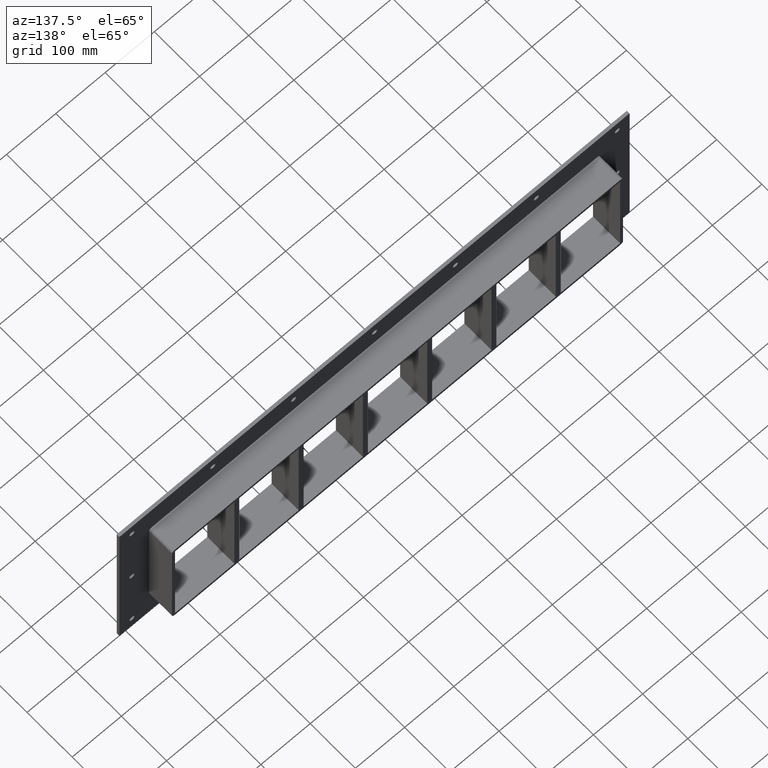
[diagram: clean part render]
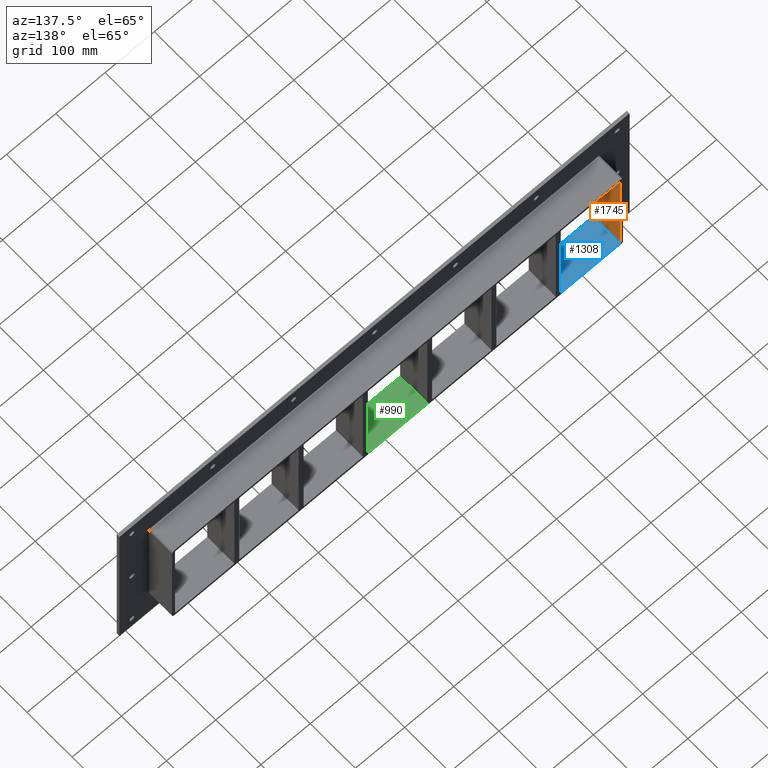
[diagram: same view with three faces highlighted in distinct colors, each labeled with its STEP entity id]
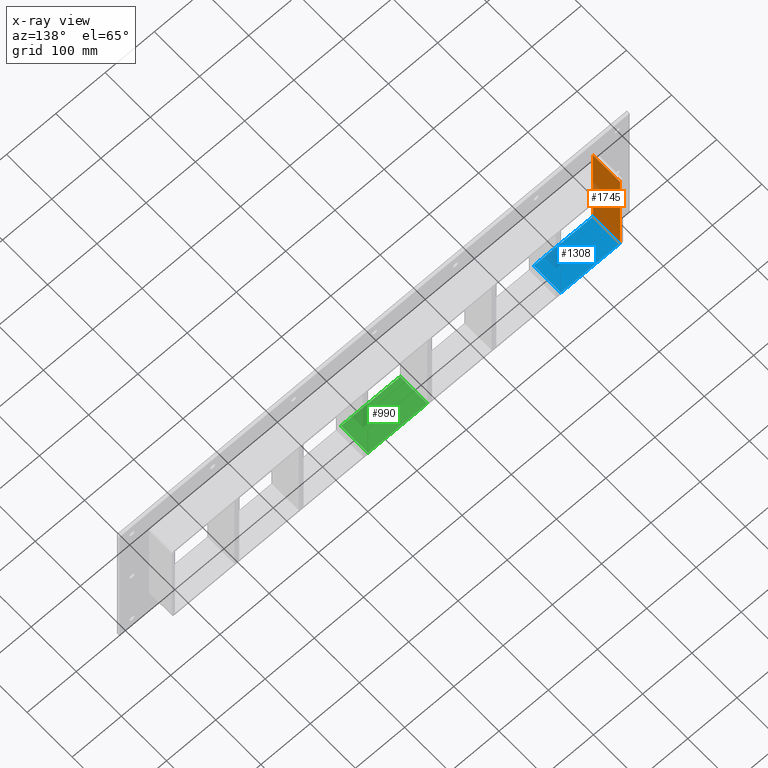
[diagram: x-ray of the same camera — body ghosted, the three highlighted faces saturated]
A machine part, auxiliary view with three faces highlighted in distinct colors.
The next image is the same camera in x-ray (body ghosted, the three faces saturated) — at least one of them is partly hidden behind the body in this view.
Their STEP definitions:

[orange] entity #1745 — the highlighted planar face has unit normal (-1, 0, 0).
#1284=CARTESIAN_POINT('',(-451.75000000000006,57.0,-108.99999999999999));
#1285=VERTEX_POINT('',#1284);
#1292=CARTESIAN_POINT('',(-451.75000000000006,-3.0,-108.99999999999999));
#1293=VERTEX_POINT('',#1292);
#1294=CARTESIAN_POINT('',(-451.75000000000006,-3.0,-108.99999999999999));
#1295=DIRECTION('',(0.0,1.0,0.0));
#1296=VECTOR('',#1295,60.0);
#1297=LINE('',#1294,#1296);
#1298=EDGE_CURVE('',#1293,#1285,#1297,.T.);
#1315=CARTESIAN_POINT('',(-451.75000000000006,-3.0,108.99999999999999));
#1316=VERTEX_POINT('',#1315);
#1323=CARTESIAN_POINT('',(-451.75000000000006,57.0,108.99999999999999));
#1324=VERTEX_POINT('',#1323);
#1325=CARTESIAN_POINT('',(-451.75000000000006,-3.0,108.99999999999999));
#1326=DIRECTION('',(0.0,1.0,0.0));
#1327=VECTOR('',#1326,60.0);
#1328=LINE('',#1325,#1327);
#1329=EDGE_CURVE('',#1316,#1324,#1328,.T.);
#1724=CARTESIAN_POINT('',(-451.75000000000006,0.0,-108.99999999999999));
#1725=DIRECTION('',(-1.0,0.0,0.0));
#1726=DIRECTION('',(0.0,0.0,1.0));
#1727=AXIS2_PLACEMENT_3D('',#1724,#1725,#1726);
#1728=PLANE('',#1727);
#1729=ORIENTED_EDGE('',*,*,#1298,.T.);
#1730=CARTESIAN_POINT('',(-451.75000000000006,57.0,108.99999999999997));
#1731=DIRECTION('',(0.0,0.0,-1.0));
#1732=VECTOR('',#1731,217.99999999999994);
#1733=LINE('',#1730,#1732);
#1734=EDGE_CURVE('',#1324,#1285,#1733,.T.);
#1735=ORIENTED_EDGE('',*,*,#1734,.F.);
#1736=ORIENTED_EDGE('',*,*,#1329,.F.);
#1737=CARTESIAN_POINT('',(-451.75000000000006,-3.0,-108.99999999999999));
#1738=DIRECTION('',(0.0,0.0,1.0));
#1739=VECTOR('',#1738,217.99999999999994);
#1740=LINE('',#1737,#1739);
#1741=EDGE_CURVE('',#1293,#1316,#1740,.T.);
#1742=ORIENTED_EDGE('',*,*,#1741,.F.);
#1743=EDGE_LOOP('',(#1729,#1735,#1736,#1742));
#1744=FACE_OUTER_BOUND('',#1743,.T.);
#1745=ADVANCED_FACE('',(#1744),#1728,.F.);

[blue] entity #1308 — the highlighted planar face has unit normal (0, 0, -1).
#1221=CARTESIAN_POINT('',(-331.25000000000216,-3.0,-108.99999999999999));
#1222=VERTEX_POINT('',#1221);
#1239=CARTESIAN_POINT('',(-331.25000000000216,57.0,-108.99999999999999));
#1240=VERTEX_POINT('',#1239);
#1247=CARTESIAN_POINT('',(-331.25000000000216,-3.0,-108.99999999999999));
#1248=DIRECTION('',(0.0,1.0,0.0));
#1249=VECTOR('',#1248,60.000000000000007);
#1250=LINE('',#1247,#1249);
#1251=EDGE_CURVE('',#1222,#1240,#1250,.T.);
#1278=CARTESIAN_POINT('',(451.75000000000006,0.0,-108.99999999999999));
#1279=DIRECTION('',(0.0,0.0,-1.0));
#1280=DIRECTION('',(-1.0,0.0,0.0));
#1281=AXIS2_PLACEMENT_3D('',#1278,#1279,#1280);
#1282=PLANE('',#1281);
#1283=ORIENTED_EDGE('',*,*,#1251,.T.);
#1284=CARTESIAN_POINT('',(-451.75000000000006,57.0,-108.99999999999999));
#1285=VERTEX_POINT('',#1284);
#1286=CARTESIAN_POINT('',(-451.75,57.0,-108.99999999999999));
#1287=DIRECTION('',(1.0,0.0,0.0));
#1288=VECTOR('',#1287,120.49999999999784);
#1289=LINE('',#1286,#1288);
#1290=EDGE_CURVE('',#1285,#1240,#1289,.T.);
#1291=ORIENTED_EDGE('',*,*,#1290,.F.);
#1292=CARTESIAN_POINT('',(-451.75000000000006,-3.0,-108.99999999999999));
#1293=VERTEX_POINT('',#1292);
#1294=CARTESIAN_POINT('',(-451.75000000000006,-3.0,-108.99999999999999));
#1295=DIRECTION('',(0.0,1.0,0.0));
#1296=VECTOR('',#1295,60.0);
#1297=LINE('',#1294,#1296);
#1298=EDGE_CURVE('',#1293,#1285,#1297,.T.);
#1299=ORIENTED_EDGE('',*,*,#1298,.F.);
#1300=CARTESIAN_POINT('',(-331.25000000000216,-3.0,-108.99999999999999));
#1301=DIRECTION('',(-1.0,0.0,0.0));
#1302=VECTOR('',#1301,120.49999999999784);
#1303=LINE('',#1300,#1302);
#1304=EDGE_CURVE('',#1222,#1293,#1303,.T.);
#1305=ORIENTED_EDGE('',*,*,#1304,.F.);
#1306=EDGE_LOOP('',(#1283,#1291,#1299,#1305));
#1307=FACE_OUTER_BOUND('',#1306,.T.);
#1308=ADVANCED_FACE('',(#1307),#1282,.F.);

[green] entity #990 — the highlighted planar face has unit normal (0, 0, -1).
#681=CARTESIAN_POINT('',(60.249999999997925,-3.0,-108.99999999999999));
#682=VERTEX_POINT('',#681);
#699=CARTESIAN_POINT('',(60.249999999997925,57.0,-108.99999999999999));
#700=VERTEX_POINT('',#699);
#707=CARTESIAN_POINT('',(60.249999999997925,-3.0,-108.99999999999999));
#708=DIRECTION('',(0.0,1.0,0.0));
#709=VECTOR('',#708,60.000000000000007);
#710=LINE('',#707,#709);
#711=EDGE_CURVE('',#682,#700,#710,.T.);
#803=CARTESIAN_POINT('',(-60.249999999999986,-3.0,-108.9999999999869));
#804=VERTEX_POINT('',#803);
#811=CARTESIAN_POINT('',(-60.249999999999986,57.0,-108.99999999998691));
#812=VERTEX_POINT('',#811);
#813=CARTESIAN_POINT('',(-60.249999999999986,57.000000000000007,-108.99999999999999));
#814=DIRECTION('',(0.0,-1.0,0.0));
#815=VECTOR('',#814,60.000000000000007);
#816=LINE('',#813,#815);
#817=EDGE_CURVE('',#812,#804,#816,.T.);
#969=CARTESIAN_POINT('',(451.75000000000006,0.0,-108.99999999999999));
#970=DIRECTION('',(0.0,0.0,-1.0));
#971=DIRECTION('',(-1.0,0.0,0.0));
#972=AXIS2_PLACEMENT_3D('',#969,#970,#971);
#973=PLANE('',#972);
#974=ORIENTED_EDGE('',*,*,#711,.T.);
#975=CARTESIAN_POINT('',(-60.249999999999972,57.0,-108.99999999999999));
#976=DIRECTION('',(1.0,0.0,0.0));
#977=VECTOR('',#976,120.4999999999979);
#978=LINE('',#975,#977);
#979=EDGE_CURVE('',#812,#700,#978,.T.);
#980=ORIENTED_EDGE('',*,*,#979,.F.);
#981=ORIENTED_EDGE('',*,*,#817,.T.);
#982=CARTESIAN_POINT('',(60.249999999997925,-3.0,-108.99999999999999));
#983=DIRECTION('',(-1.0,0.0,0.0));
#984=VECTOR('',#983,120.4999999999979);
#985=LINE('',#982,#984);
#986=EDGE_CURVE('',#682,#804,#985,.T.);
#987=ORIENTED_EDGE('',*,*,#986,.F.);
#988=EDGE_LOOP('',(#974,#980,#981,#987));
#989=FACE_OUTER_BOUND('',#988,.T.);
#990=ADVANCED_FACE('',(#989),#973,.F.);